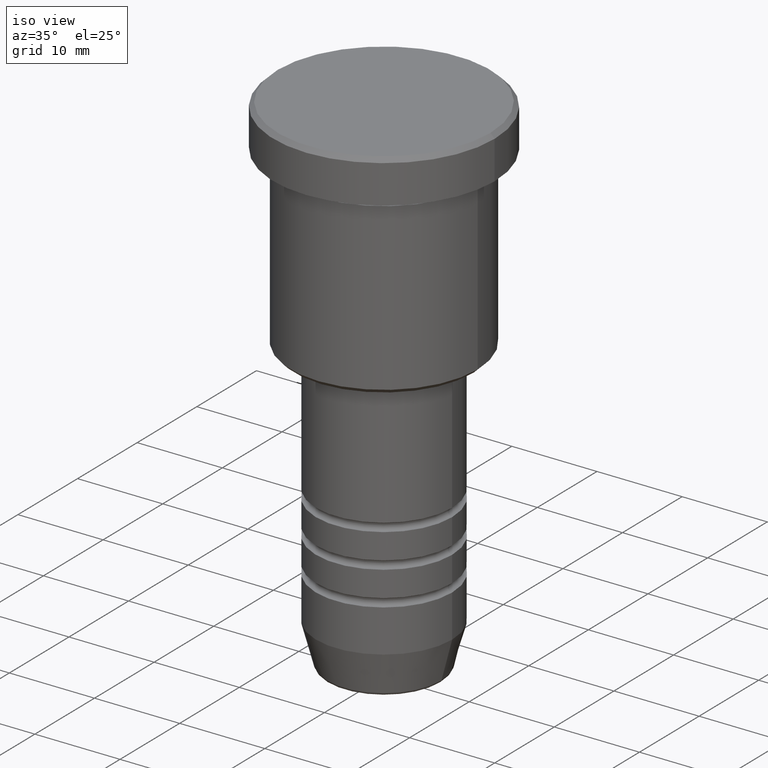
[diagram: clean part render]
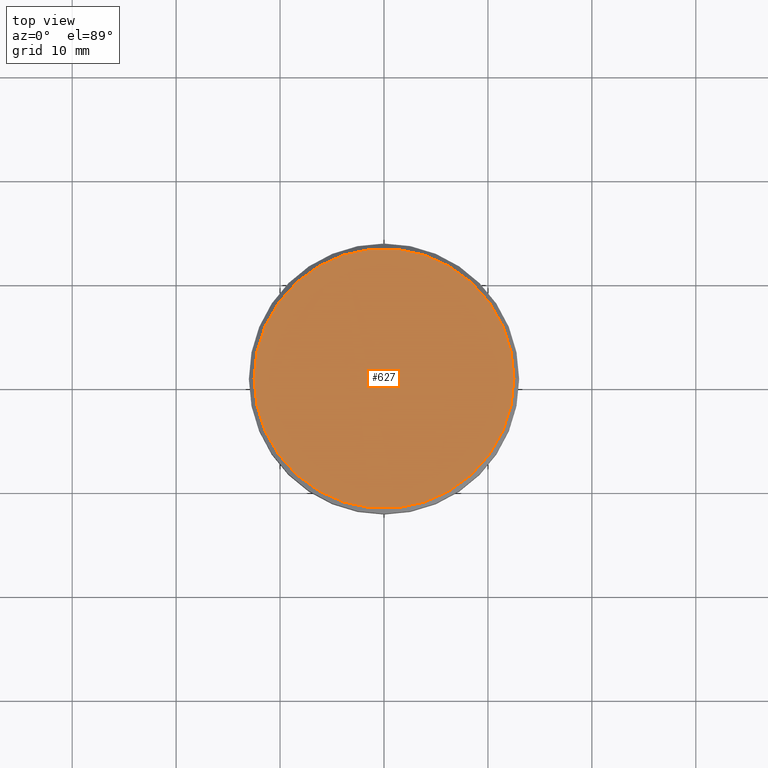
[diagram: tour spotlight — one face highlighted and labeled with its STEP entity id]
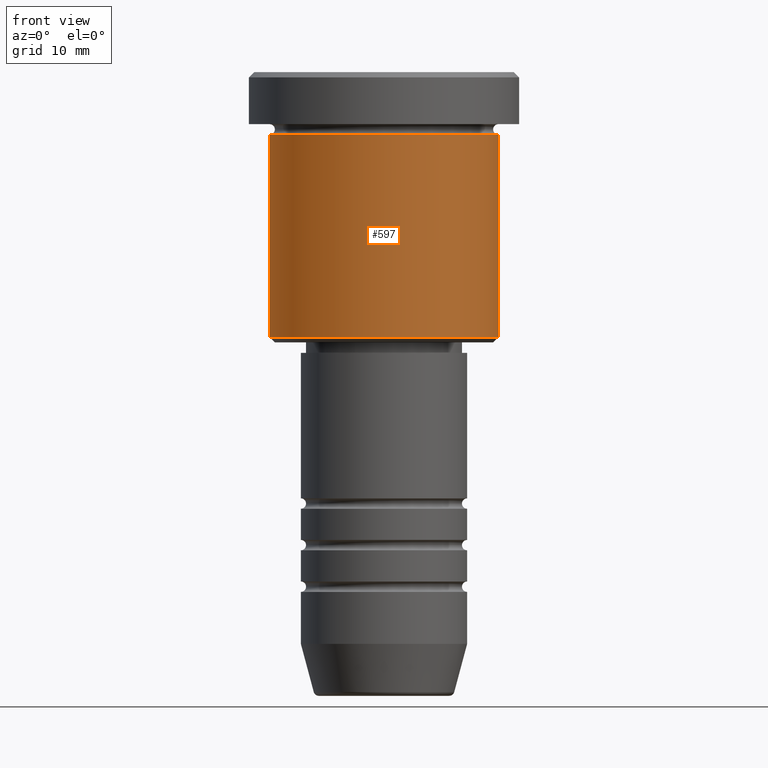
[diagram: tour spotlight — one face highlighted and labeled with its STEP entity id]
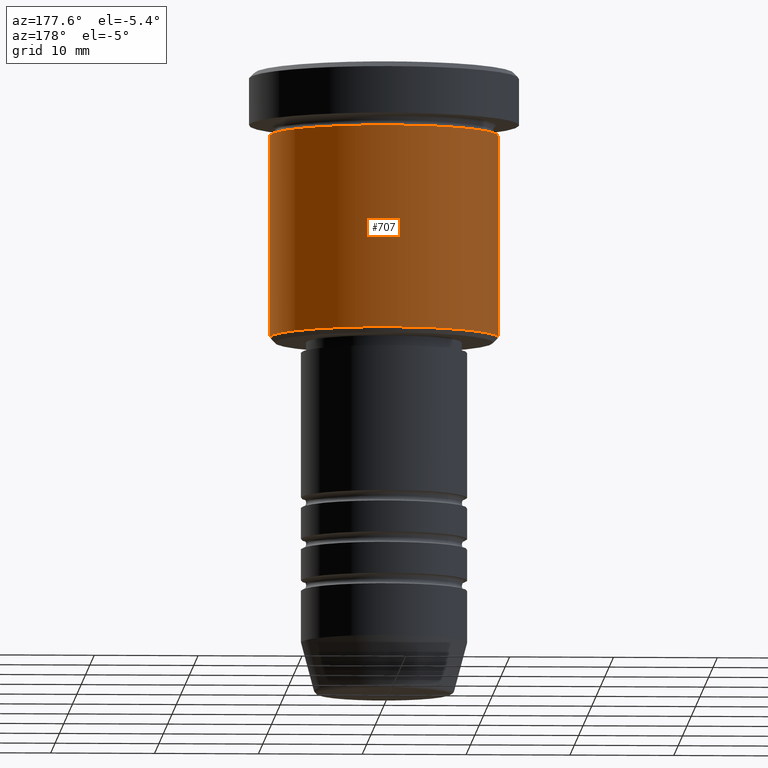
[diagram: tour spotlight — one face highlighted and labeled with its STEP entity id]
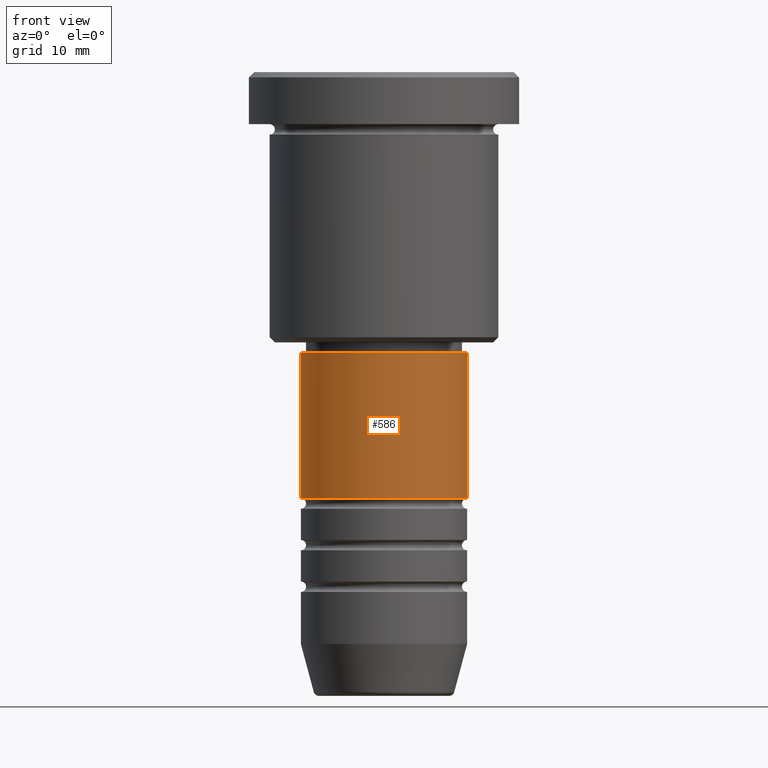
[diagram: tour spotlight — one face highlighted and labeled with its STEP entity id]
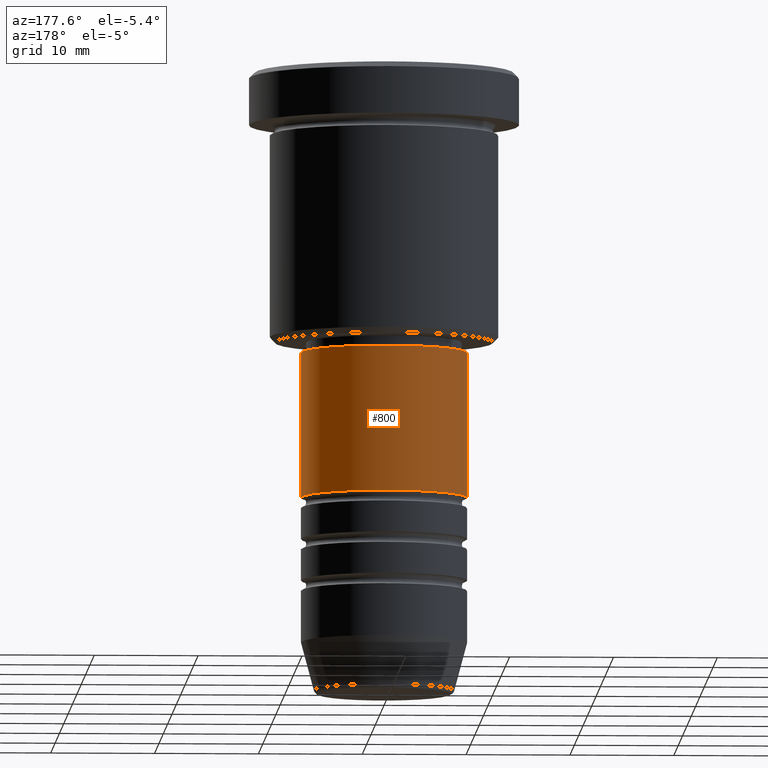
[diagram: tour spotlight — one face highlighted and labeled with its STEP entity id]
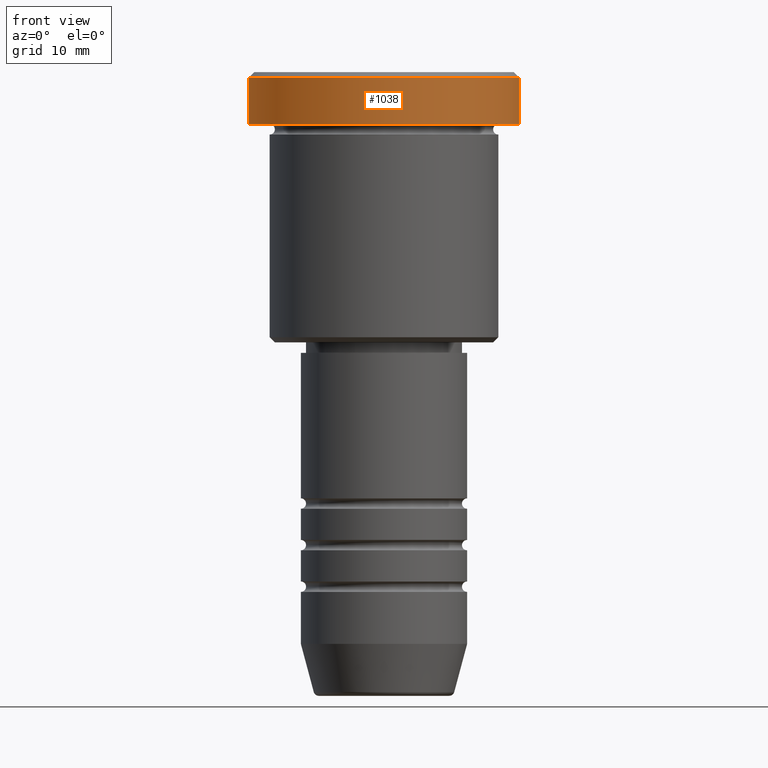
[diagram: tour spotlight — one face highlighted and labeled with its STEP entity id]
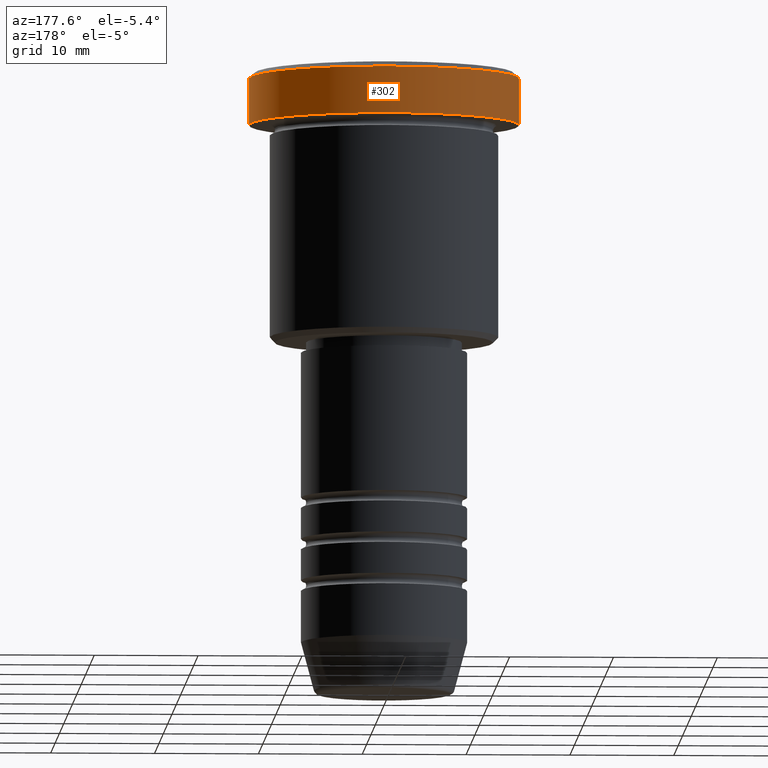
[diagram: tour spotlight — one face highlighted and labeled with its STEP entity id]
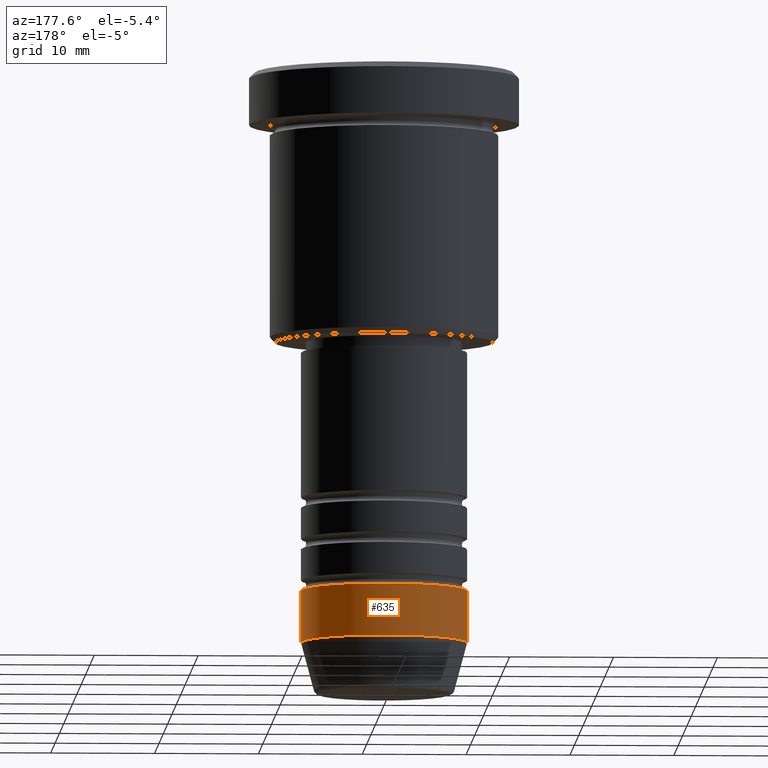
[diagram: tour spotlight — one face highlighted and labeled with its STEP entity id]
A machine part: a face-by-face anatomy tour. The part has 43 B-rep faces; the first image is the clean iso view, then the 8 largest visible faces are spotlighted one at a time (largest first), each with its STEP entity span.

Face 1 — top view, entity #627. In plain terms, the highlighted planar face has unit normal (0, -0, 1).
Definition (entity closure, byte-faithful):
#22 = DIRECTION ( 'NONE',  ( -0.000000000000000000, -0.000000000000000000, 1.000000000000000000 ) ) ;
#30 = CARTESIAN_POINT ( 'NONE',  ( 0.000000000000000000, 0.000000000000000000, 0.000000000000000000 ) ) ;
#57 = VERTEX_POINT ( 'NONE', #466 ) ;
#65 = CARTESIAN_POINT ( 'NONE',  ( -12.50000000000001776, 0.000000000000000000, 0.000000000000000000 ) ) ;
#132 = EDGE_CURVE ( 'NONE', #57, #149, #404, .T. ) ;
#149 = VERTEX_POINT ( 'NONE', #65 ) ;
#199 = ORIENTED_EDGE ( 'NONE', *, *, #132, .T. ) ;
#230 = AXIS2_PLACEMENT_3D ( 'NONE', #416, #782, #882 ) ;
#241 = CARTESIAN_POINT ( 'NONE',  ( 0.000000000000000000, 0.000000000000000000, 0.000000000000000000 ) ) ;
#317 = PLANE ( 'NONE',  #951 ) ;
#329 = AXIS2_PLACEMENT_3D ( 'NONE', #30, #22, #399 ) ;
#399 = DIRECTION ( 'NONE',  ( 1.000000000000000000, 0.000000000000000000, 0.000000000000000000 ) ) ;
#404 = CIRCLE ( 'NONE', #230, 12.50000000000001776 ) ;
#416 = CARTESIAN_POINT ( 'NONE',  ( 0.000000000000000000, 0.000000000000000000, 0.000000000000000000 ) ) ;
#466 = CARTESIAN_POINT ( 'NONE',  ( 12.50000000000001776, 1.561424668912876492E-15, 0.000000000000000000 ) ) ;
#493 = EDGE_LOOP ( 'NONE', ( #729, #199 ) ) ;
#594 = FACE_OUTER_BOUND ( 'NONE', #493, .T. ) ;
#627 = ADVANCED_FACE ( 'NONE', ( #594 ), #317, .T. ) ;
#729 = ORIENTED_EDGE ( 'NONE', *, *, #940, .T. ) ;
#782 = DIRECTION ( 'NONE',  ( -0.000000000000000000, -0.000000000000000000, 1.000000000000000000 ) ) ;
#882 = DIRECTION ( 'NONE',  ( 1.000000000000000000, 0.000000000000000000, 0.000000000000000000 ) ) ;
#940 = EDGE_CURVE ( 'NONE', #149, #57, #1049, .T. ) ;
#951 = AXIS2_PLACEMENT_3D ( 'NONE', #241, #1056, #1164 ) ;
#1049 = CIRCLE ( 'NONE', #329, 12.50000000000001776 ) ;
#1056 = DIRECTION ( 'NONE',  ( 0.000000000000000000, -0.000000000000000000, 1.000000000000000000 ) ) ;
#1164 = DIRECTION ( 'NONE',  ( 1.000000000000000000, 0.000000000000000000, 0.000000000000000000 ) ) ;

Face 2 — front view, entity #597. In plain terms, the highlighted cylindrical surface (partial cylindrical patch) has radius 11 mm, axis along (-0, -0, 1).
Definition (entity closure, byte-faithful):
#45 = EDGE_LOOP ( 'NONE', ( #179, #862, #1087, #417 ) ) ;
#81 = CARTESIAN_POINT ( 'NONE',  ( 0.000000000000000000, 0.000000000000000000, -5.999999999999999112 ) ) ;
#85 = CIRCLE ( 'NONE', #390, 11.00000000000000000 ) ;
#146 = CARTESIAN_POINT ( 'NONE',  ( 11.00000000000000000, 0.000000000000000000, -5.999999999999999112 ) ) ;
#179 = ORIENTED_EDGE ( 'NONE', *, *, #549, .F. ) ;
#191 = DIRECTION ( 'NONE',  ( 1.000000000000000000, 0.000000000000000000, 0.000000000000000000 ) ) ;
#216 = AXIS2_PLACEMENT_3D ( 'NONE', #978, #708, #611 ) ;
#236 = CIRCLE ( 'NONE', #273, 11.00000000000000000 ) ;
#269 = CARTESIAN_POINT ( 'NONE',  ( 11.00000000000000000, 0.000000000000000000, 0.000000000000000000 ) ) ;
#273 = AXIS2_PLACEMENT_3D ( 'NONE', #1151, #507, #427 ) ;
#291 = VECTOR ( 'NONE', #734, 1000.000000000000000 ) ;
#304 = CARTESIAN_POINT ( 'NONE',  ( -11.00000000000000000, 1.347111479062088405E-15, -5.999999999999999112 ) ) ;
#390 = AXIS2_PLACEMENT_3D ( 'NONE', #81, #441, #191 ) ;
#417 = ORIENTED_EDGE ( 'NONE', *, *, #834, .F. ) ;
#427 = DIRECTION ( 'NONE',  ( -1.000000000000000000, 0.000000000000000000, 0.000000000000000000 ) ) ;
#441 = DIRECTION ( 'NONE',  ( -0.000000000000000000, -0.000000000000000000, 1.000000000000000000 ) ) ;
#507 = DIRECTION ( 'NONE',  ( -0.000000000000000000, -0.000000000000000000, 1.000000000000000000 ) ) ;
#549 = EDGE_CURVE ( 'NONE', #964, #856, #1029, .T. ) ;
#566 = CARTESIAN_POINT ( 'NONE',  ( -11.00000000000000000, 1.347111479062088405E-15, 0.000000000000000000 ) ) ;
#597 = ADVANCED_FACE ( 'NONE', ( #607 ), #698, .T. ) ;
#604 = EDGE_CURVE ( 'NONE', #964, #724, #236, .T. ) ;
#607 = FACE_OUTER_BOUND ( 'NONE', #45, .T. ) ;
#611 = DIRECTION ( 'NONE',  ( 1.000000000000000000, 0.000000000000000000, 0.000000000000000000 ) ) ;
#637 = LINE ( 'NONE', #269, #291 ) ;
#692 = EDGE_CURVE ( 'NONE', #724, #993, #637, .T. ) ;
#698 = CYLINDRICAL_SURFACE ( 'NONE', #216, 11.00000000000000000 ) ;
#708 = DIRECTION ( 'NONE',  ( -0.000000000000000000, -0.000000000000000000, 1.000000000000000000 ) ) ;
#724 = VERTEX_POINT ( 'NONE', #913 ) ;
#734 = DIRECTION ( 'NONE',  ( -0.000000000000000000, -0.000000000000000000, 1.000000000000000000 ) ) ;
#830 = VECTOR ( 'NONE', #1036, 1000.000000000000000 ) ;
#834 = EDGE_CURVE ( 'NONE', #856, #993, #85, .T. ) ;
#836 = CARTESIAN_POINT ( 'NONE',  ( -11.00000000000000000, 1.347111479062088405E-15, -25.50000000000000355 ) ) ;
#856 = VERTEX_POINT ( 'NONE', #304 ) ;
#862 = ORIENTED_EDGE ( 'NONE', *, *, #604, .T. ) ;
#913 = CARTESIAN_POINT ( 'NONE',  ( 11.00000000000000000, 0.000000000000000000, -25.50000000000000355 ) ) ;
#964 = VERTEX_POINT ( 'NONE', #836 ) ;
#978 = CARTESIAN_POINT ( 'NONE',  ( 0.000000000000000000, 0.000000000000000000, 0.000000000000000000 ) ) ;
#993 = VERTEX_POINT ( 'NONE', #146 ) ;
#1029 = LINE ( 'NONE', #566, #830 ) ;
#1036 = DIRECTION ( 'NONE',  ( -0.000000000000000000, -0.000000000000000000, 1.000000000000000000 ) ) ;
#1087 = ORIENTED_EDGE ( 'NONE', *, *, #692, .T. ) ;
#1151 = CARTESIAN_POINT ( 'NONE',  ( 0.000000000000000000, 0.000000000000000000, -25.50000000000000355 ) ) ;

Face 3 — auxiliary view, entity #707. In plain terms, the highlighted cylindrical surface (partial cylindrical patch) has radius 11 mm, axis along (-0, -0, 1).
Definition (entity closure, byte-faithful):
#17 = ORIENTED_EDGE ( 'NONE', *, *, #861, .F. ) ;
#60 = EDGE_CURVE ( 'NONE', #724, #964, #849, .T. ) ;
#146 = CARTESIAN_POINT ( 'NONE',  ( 11.00000000000000000, 0.000000000000000000, -5.999999999999999112 ) ) ;
#161 = ORIENTED_EDGE ( 'NONE', *, *, #692, .F. ) ;
#184 = DIRECTION ( 'NONE',  ( -1.000000000000000000, 0.000000000000000000, 0.000000000000000000 ) ) ;
#200 = CARTESIAN_POINT ( 'NONE',  ( 0.000000000000000000, 0.000000000000000000, -5.999999999999999112 ) ) ;
#209 = CARTESIAN_POINT ( 'NONE',  ( 0.000000000000000000, 0.000000000000000000, -25.50000000000000355 ) ) ;
#264 = FACE_OUTER_BOUND ( 'NONE', #1043, .T. ) ;
#269 = CARTESIAN_POINT ( 'NONE',  ( 11.00000000000000000, 0.000000000000000000, 0.000000000000000000 ) ) ;
#275 = ORIENTED_EDGE ( 'NONE', *, *, #549, .T. ) ;
#291 = VECTOR ( 'NONE', #734, 1000.000000000000000 ) ;
#304 = CARTESIAN_POINT ( 'NONE',  ( -11.00000000000000000, 1.347111479062088405E-15, -5.999999999999999112 ) ) ;
#345 = CARTESIAN_POINT ( 'NONE',  ( 0.000000000000000000, 0.000000000000000000, 0.000000000000000000 ) ) ;
#450 = ORIENTED_EDGE ( 'NONE', *, *, #60, .T. ) ;
#549 = EDGE_CURVE ( 'NONE', #964, #856, #1029, .T. ) ;
#566 = CARTESIAN_POINT ( 'NONE',  ( -11.00000000000000000, 1.347111479062088405E-15, 0.000000000000000000 ) ) ;
#637 = LINE ( 'NONE', #269, #291 ) ;
#644 = CYLINDRICAL_SURFACE ( 'NONE', #756, 11.00000000000000000 ) ;
#661 = DIRECTION ( 'NONE',  ( -0.000000000000000000, -0.000000000000000000, 1.000000000000000000 ) ) ;
#692 = EDGE_CURVE ( 'NONE', #724, #993, #637, .T. ) ;
#707 = ADVANCED_FACE ( 'NONE', ( #264 ), #644, .T. ) ;
#724 = VERTEX_POINT ( 'NONE', #913 ) ;
#734 = DIRECTION ( 'NONE',  ( -0.000000000000000000, -0.000000000000000000, 1.000000000000000000 ) ) ;
#751 = DIRECTION ( 'NONE',  ( -0.000000000000000000, -0.000000000000000000, 1.000000000000000000 ) ) ;
#756 = AXIS2_PLACEMENT_3D ( 'NONE', #345, #803, #1010 ) ;
#803 = DIRECTION ( 'NONE',  ( -0.000000000000000000, -0.000000000000000000, 1.000000000000000000 ) ) ;
#830 = VECTOR ( 'NONE', #1036, 1000.000000000000000 ) ;
#832 = AXIS2_PLACEMENT_3D ( 'NONE', #200, #751, #942 ) ;
#836 = CARTESIAN_POINT ( 'NONE',  ( -11.00000000000000000, 1.347111479062088405E-15, -25.50000000000000355 ) ) ;
#849 = CIRCLE ( 'NONE', #1172, 11.00000000000000000 ) ;
#856 = VERTEX_POINT ( 'NONE', #304 ) ;
#861 = EDGE_CURVE ( 'NONE', #993, #856, #1065, .T. ) ;
#913 = CARTESIAN_POINT ( 'NONE',  ( 11.00000000000000000, 0.000000000000000000, -25.50000000000000355 ) ) ;
#942 = DIRECTION ( 'NONE',  ( 1.000000000000000000, 0.000000000000000000, 0.000000000000000000 ) ) ;
#964 = VERTEX_POINT ( 'NONE', #836 ) ;
#993 = VERTEX_POINT ( 'NONE', #146 ) ;
#1010 = DIRECTION ( 'NONE',  ( 1.000000000000000000, 0.000000000000000000, 0.000000000000000000 ) ) ;
#1029 = LINE ( 'NONE', #566, #830 ) ;
#1036 = DIRECTION ( 'NONE',  ( -0.000000000000000000, -0.000000000000000000, 1.000000000000000000 ) ) ;
#1043 = EDGE_LOOP ( 'NONE', ( #450, #275, #17, #161 ) ) ;
#1065 = CIRCLE ( 'NONE', #832, 11.00000000000000000 ) ;
#1172 = AXIS2_PLACEMENT_3D ( 'NONE', #209, #661, #184 ) ;

Face 4 — front view, entity #586. In plain terms, the highlighted cylindrical surface (partial cylindrical patch) has radius 8 mm, axis along (-0, -0, 1).
Definition (entity closure, byte-faithful):
#26 = CARTESIAN_POINT ( 'NONE',  ( -8.000000000000000000, 9.797174393178825657E-16, 0.000000000000000000 ) ) ;
#49 = DIRECTION ( 'NONE',  ( 1.000000000000000000, 0.000000000000000000, 0.000000000000000000 ) ) ;
#55 = EDGE_CURVE ( 'NONE', #941, #540, #471, .T. ) ;
#102 = CIRCLE ( 'NONE', #442, 8.000000000000000000 ) ;
#134 = DIRECTION ( 'NONE',  ( -0.000000000000000000, -0.000000000000000000, 1.000000000000000000 ) ) ;
#141 = CARTESIAN_POINT ( 'NONE',  ( 0.000000000000000000, 0.000000000000000000, 0.000000000000000000 ) ) ;
#153 = LINE ( 'NONE', #240, #790 ) ;
#170 = DIRECTION ( 'NONE',  ( -0.000000000000000000, -0.000000000000000000, 1.000000000000000000 ) ) ;
#201 = DIRECTION ( 'NONE',  ( -0.000000000000000000, -0.000000000000000000, 1.000000000000000000 ) ) ;
#221 = CARTESIAN_POINT ( 'NONE',  ( 0.000000000000000000, 0.000000000000000000, -40.99999999999999289 ) ) ;
#235 = DIRECTION ( 'NONE',  ( -0.000000000000000000, -0.000000000000000000, 1.000000000000000000 ) ) ;
#240 = CARTESIAN_POINT ( 'NONE',  ( 8.000000000000000000, 0.000000000000000000, 0.000000000000000000 ) ) ;
#246 = CYLINDRICAL_SURFACE ( 'NONE', #560, 8.000000000000000000 ) ;
#355 = EDGE_CURVE ( 'NONE', #540, #1148, #1046, .T. ) ;
#375 = VERTEX_POINT ( 'NONE', #931 ) ;
#438 = ORIENTED_EDGE ( 'NONE', *, *, #55, .F. ) ;
#442 = AXIS2_PLACEMENT_3D ( 'NONE', #221, #201, #585 ) ;
#461 = CARTESIAN_POINT ( 'NONE',  ( 0.000000000000000000, 0.000000000000000000, -27.00000000000001776 ) ) ;
#471 = LINE ( 'NONE', #26, #1024 ) ;
#502 = ORIENTED_EDGE ( 'NONE', *, *, #506, .T. ) ;
#506 = EDGE_CURVE ( 'NONE', #941, #375, #102, .T. ) ;
#540 = VERTEX_POINT ( 'NONE', #683 ) ;
#548 = DIRECTION ( 'NONE',  ( 1.000000000000000000, 0.000000000000000000, 0.000000000000000000 ) ) ;
#560 = AXIS2_PLACEMENT_3D ( 'NONE', #141, #235, #49 ) ;
#585 = DIRECTION ( 'NONE',  ( 1.000000000000000000, 0.000000000000000000, 0.000000000000000000 ) ) ;
#586 = ADVANCED_FACE ( 'NONE', ( #1145 ), #246, .T. ) ;
#681 = CARTESIAN_POINT ( 'NONE',  ( -8.000000000000000000, 9.797174393178825657E-16, -40.99999999999999289 ) ) ;
#683 = CARTESIAN_POINT ( 'NONE',  ( -8.000000000000000000, 9.797174393178825657E-16, -27.00000000000001776 ) ) ;
#730 = CARTESIAN_POINT ( 'NONE',  ( 8.000000000000000000, 0.000000000000000000, -27.00000000000001776 ) ) ;
#758 = EDGE_LOOP ( 'NONE', ( #438, #502, #1072, #1054 ) ) ;
#790 = VECTOR ( 'NONE', #134, 1000.000000000000000 ) ;
#872 = AXIS2_PLACEMENT_3D ( 'NONE', #461, #170, #548 ) ;
#931 = CARTESIAN_POINT ( 'NONE',  ( 8.000000000000000000, 0.000000000000000000, -40.99999999999999289 ) ) ;
#941 = VERTEX_POINT ( 'NONE', #681 ) ;
#1014 = EDGE_CURVE ( 'NONE', #375, #1148, #153, .T. ) ;
#1024 = VECTOR ( 'NONE', #1129, 1000.000000000000000 ) ;
#1046 = CIRCLE ( 'NONE', #872, 8.000000000000000000 ) ;
#1054 = ORIENTED_EDGE ( 'NONE', *, *, #355, .F. ) ;
#1072 = ORIENTED_EDGE ( 'NONE', *, *, #1014, .T. ) ;
#1129 = DIRECTION ( 'NONE',  ( -0.000000000000000000, -0.000000000000000000, 1.000000000000000000 ) ) ;
#1145 = FACE_OUTER_BOUND ( 'NONE', #758, .T. ) ;
#1148 = VERTEX_POINT ( 'NONE', #730 ) ;

Face 5 — auxiliary view, entity #800. In plain terms, the highlighted cylindrical surface (partial cylindrical patch) has radius 8 mm, axis along (-0, -0, 1).
Definition (entity closure, byte-faithful):
#4 = DIRECTION ( 'NONE',  ( 1.000000000000000000, 0.000000000000000000, 0.000000000000000000 ) ) ;
#24 = DIRECTION ( 'NONE',  ( -0.000000000000000000, -0.000000000000000000, 1.000000000000000000 ) ) ;
#26 = CARTESIAN_POINT ( 'NONE',  ( -8.000000000000000000, 9.797174393178825657E-16, 0.000000000000000000 ) ) ;
#55 = EDGE_CURVE ( 'NONE', #941, #540, #471, .T. ) ;
#129 = ORIENTED_EDGE ( 'NONE', *, *, #812, .T. ) ;
#134 = DIRECTION ( 'NONE',  ( -0.000000000000000000, -0.000000000000000000, 1.000000000000000000 ) ) ;
#152 = ORIENTED_EDGE ( 'NONE', *, *, #55, .T. ) ;
#153 = LINE ( 'NONE', #240, #790 ) ;
#177 = AXIS2_PLACEMENT_3D ( 'NONE', #358, #371, #1170 ) ;
#213 = DIRECTION ( 'NONE',  ( 1.000000000000000000, 0.000000000000000000, 0.000000000000000000 ) ) ;
#240 = CARTESIAN_POINT ( 'NONE',  ( 8.000000000000000000, 0.000000000000000000, 0.000000000000000000 ) ) ;
#358 = CARTESIAN_POINT ( 'NONE',  ( 0.000000000000000000, 0.000000000000000000, 0.000000000000000000 ) ) ;
#371 = DIRECTION ( 'NONE',  ( -0.000000000000000000, -0.000000000000000000, 1.000000000000000000 ) ) ;
#375 = VERTEX_POINT ( 'NONE', #931 ) ;
#407 = EDGE_CURVE ( 'NONE', #1148, #540, #890, .T. ) ;
#453 = DIRECTION ( 'NONE',  ( -0.000000000000000000, -0.000000000000000000, 1.000000000000000000 ) ) ;
#459 = FACE_OUTER_BOUND ( 'NONE', #651, .T. ) ;
#471 = LINE ( 'NONE', #26, #1024 ) ;
#474 = ORIENTED_EDGE ( 'NONE', *, *, #407, .F. ) ;
#540 = VERTEX_POINT ( 'NONE', #683 ) ;
#651 = EDGE_LOOP ( 'NONE', ( #129, #152, #474, #1139 ) ) ;
#677 = AXIS2_PLACEMENT_3D ( 'NONE', #1047, #24, #213 ) ;
#681 = CARTESIAN_POINT ( 'NONE',  ( -8.000000000000000000, 9.797174393178825657E-16, -40.99999999999999289 ) ) ;
#683 = CARTESIAN_POINT ( 'NONE',  ( -8.000000000000000000, 9.797174393178825657E-16, -27.00000000000001776 ) ) ;
#730 = CARTESIAN_POINT ( 'NONE',  ( 8.000000000000000000, 0.000000000000000000, -27.00000000000001776 ) ) ;
#790 = VECTOR ( 'NONE', #134, 1000.000000000000000 ) ;
#800 = ADVANCED_FACE ( 'NONE', ( #459 ), #1107, .T. ) ;
#812 = EDGE_CURVE ( 'NONE', #375, #941, #930, .T. ) ;
#890 = CIRCLE ( 'NONE', #677, 8.000000000000000000 ) ;
#930 = CIRCLE ( 'NONE', #1119, 8.000000000000000000 ) ;
#931 = CARTESIAN_POINT ( 'NONE',  ( 8.000000000000000000, 0.000000000000000000, -40.99999999999999289 ) ) ;
#941 = VERTEX_POINT ( 'NONE', #681 ) ;
#995 = CARTESIAN_POINT ( 'NONE',  ( 0.000000000000000000, 0.000000000000000000, -40.99999999999999289 ) ) ;
#1014 = EDGE_CURVE ( 'NONE', #375, #1148, #153, .T. ) ;
#1024 = VECTOR ( 'NONE', #1129, 1000.000000000000000 ) ;
#1047 = CARTESIAN_POINT ( 'NONE',  ( 0.000000000000000000, 0.000000000000000000, -27.00000000000001776 ) ) ;
#1107 = CYLINDRICAL_SURFACE ( 'NONE', #177, 8.000000000000000000 ) ;
#1119 = AXIS2_PLACEMENT_3D ( 'NONE', #995, #453, #4 ) ;
#1129 = DIRECTION ( 'NONE',  ( -0.000000000000000000, -0.000000000000000000, 1.000000000000000000 ) ) ;
#1139 = ORIENTED_EDGE ( 'NONE', *, *, #1014, .F. ) ;
#1148 = VERTEX_POINT ( 'NONE', #730 ) ;
#1170 = DIRECTION ( 'NONE',  ( 1.000000000000000000, 0.000000000000000000, 0.000000000000000000 ) ) ;

Face 6 — front view, entity #1038. In plain terms, the highlighted cylindrical surface (partial cylindrical patch) has radius 13 mm, axis along (-0, -0, 1).
Definition (entity closure, byte-faithful):
#53 = ORIENTED_EDGE ( 'NONE', *, *, #1021, .T. ) ;
#71 = DIRECTION ( 'NONE',  ( 1.000000000000000000, 0.000000000000000000, 0.000000000000000000 ) ) ;
#139 = CIRCLE ( 'NONE', #804, 13.00000000000000000 ) ;
#158 = EDGE_CURVE ( 'NONE', #1076, #956, #139, .T. ) ;
#159 = CIRCLE ( 'NONE', #988, 13.00000000000000000 ) ;
#206 = DIRECTION ( 'NONE',  ( -0.000000000000000000, -0.000000000000000000, 1.000000000000000000 ) ) ;
#212 = CARTESIAN_POINT ( 'NONE',  ( -13.00000000000000000, 1.592040838891559095E-15, -0.4999999999999865663 ) ) ;
#232 = CARTESIAN_POINT ( 'NONE',  ( 13.00000000000000000, 0.000000000000000000, -0.4999999999999865663 ) ) ;
#266 = EDGE_CURVE ( 'NONE', #633, #956, #1094, .T. ) ;
#315 = DIRECTION ( 'NONE',  ( -0.000000000000000000, -0.000000000000000000, 1.000000000000000000 ) ) ;
#328 = CARTESIAN_POINT ( 'NONE',  ( -13.00000000000000000, 1.592040838891559095E-15, -5.000000000000000000 ) ) ;
#351 = ORIENTED_EDGE ( 'NONE', *, *, #158, .T. ) ;
#419 = CARTESIAN_POINT ( 'NONE',  ( 13.00000000000000000, 0.000000000000000000, -5.000000000000000000 ) ) ;
#437 = DIRECTION ( 'NONE',  ( 0.000000000000000000, 0.000000000000000000, -1.000000000000000000 ) ) ;
#464 = VECTOR ( 'NONE', #315, 1000.000000000000000 ) ;
#475 = DIRECTION ( 'NONE',  ( 1.000000000000000000, 0.000000000000000000, 0.000000000000000000 ) ) ;
#505 = DIRECTION ( 'NONE',  ( 1.000000000000000000, 0.000000000000000000, 0.000000000000000000 ) ) ;
#574 = VERTEX_POINT ( 'NONE', #419 ) ;
#606 = DIRECTION ( 'NONE',  ( -0.000000000000000000, -0.000000000000000000, 1.000000000000000000 ) ) ;
#633 = VERTEX_POINT ( 'NONE', #328 ) ;
#638 = DIRECTION ( 'NONE',  ( -0.000000000000000000, -0.000000000000000000, 1.000000000000000000 ) ) ;
#639 = AXIS2_PLACEMENT_3D ( 'NONE', #965, #606, #505 ) ;
#688 = ORIENTED_EDGE ( 'NONE', *, *, #948, .T. ) ;
#704 = CARTESIAN_POINT ( 'NONE',  ( 0.000000000000000000, 0.000000000000000000, -0.4999999999999865663 ) ) ;
#804 = AXIS2_PLACEMENT_3D ( 'NONE', #704, #437, #71 ) ;
#828 = VECTOR ( 'NONE', #638, 1000.000000000000000 ) ;
#936 = CARTESIAN_POINT ( 'NONE',  ( 0.000000000000000000, 0.000000000000000000, -5.000000000000000000 ) ) ;
#948 = EDGE_CURVE ( 'NONE', #633, #574, #159, .T. ) ;
#956 = VERTEX_POINT ( 'NONE', #212 ) ;
#965 = CARTESIAN_POINT ( 'NONE',  ( 0.000000000000000000, 0.000000000000000000, 0.000000000000000000 ) ) ;
#972 = ORIENTED_EDGE ( 'NONE', *, *, #266, .F. ) ;
#988 = AXIS2_PLACEMENT_3D ( 'NONE', #936, #206, #475 ) ;
#1021 = EDGE_CURVE ( 'NONE', #574, #1076, #1060, .T. ) ;
#1038 = ADVANCED_FACE ( 'NONE', ( #1068 ), #1159, .T. ) ;
#1055 = CARTESIAN_POINT ( 'NONE',  ( 13.00000000000000000, 0.000000000000000000, 0.000000000000000000 ) ) ;
#1060 = LINE ( 'NONE', #1055, #464 ) ;
#1068 = FACE_OUTER_BOUND ( 'NONE', #1166, .T. ) ;
#1076 = VERTEX_POINT ( 'NONE', #232 ) ;
#1094 = LINE ( 'NONE', #1102, #828 ) ;
#1102 = CARTESIAN_POINT ( 'NONE',  ( -13.00000000000000000, 1.592040838891559095E-15, 0.000000000000000000 ) ) ;
#1159 = CYLINDRICAL_SURFACE ( 'NONE', #639, 13.00000000000000000 ) ;
#1166 = EDGE_LOOP ( 'NONE', ( #972, #688, #53, #351 ) ) ;

Face 7 — auxiliary view, entity #302. In plain terms, the highlighted cylindrical surface (partial cylindrical patch) has radius 13 mm, axis along (-0, -0, 1).
Definition (entity closure, byte-faithful):
#11 = CIRCLE ( 'NONE', #256, 13.00000000000000000 ) ;
#92 = CARTESIAN_POINT ( 'NONE',  ( 0.000000000000000000, 0.000000000000000000, 0.000000000000000000 ) ) ;
#137 = ORIENTED_EDGE ( 'NONE', *, *, #1021, .F. ) ;
#202 = ORIENTED_EDGE ( 'NONE', *, *, #992, .T. ) ;
#212 = CARTESIAN_POINT ( 'NONE',  ( -13.00000000000000000, 1.592040838891559095E-15, -0.4999999999999865663 ) ) ;
#232 = CARTESIAN_POINT ( 'NONE',  ( 13.00000000000000000, 0.000000000000000000, -0.4999999999999865663 ) ) ;
#256 = AXIS2_PLACEMENT_3D ( 'NONE', #1040, #486, #320 ) ;
#266 = EDGE_CURVE ( 'NONE', #633, #956, #1094, .T. ) ;
#302 = ADVANCED_FACE ( 'NONE', ( #727 ), #1183, .T. ) ;
#315 = DIRECTION ( 'NONE',  ( -0.000000000000000000, -0.000000000000000000, 1.000000000000000000 ) ) ;
#320 = DIRECTION ( 'NONE',  ( 1.000000000000000000, 0.000000000000000000, 0.000000000000000000 ) ) ;
#328 = CARTESIAN_POINT ( 'NONE',  ( -13.00000000000000000, 1.592040838891559095E-15, -5.000000000000000000 ) ) ;
#363 = DIRECTION ( 'NONE',  ( -0.000000000000000000, -0.000000000000000000, 1.000000000000000000 ) ) ;
#419 = CARTESIAN_POINT ( 'NONE',  ( 13.00000000000000000, 0.000000000000000000, -5.000000000000000000 ) ) ;
#462 = CIRCLE ( 'NONE', #617, 13.00000000000000000 ) ;
#464 = VECTOR ( 'NONE', #315, 1000.000000000000000 ) ;
#473 = EDGE_CURVE ( 'NONE', #956, #1076, #462, .T. ) ;
#481 = DIRECTION ( 'NONE',  ( 1.000000000000000000, 0.000000000000000000, 0.000000000000000000 ) ) ;
#486 = DIRECTION ( 'NONE',  ( -0.000000000000000000, -0.000000000000000000, 1.000000000000000000 ) ) ;
#563 = ORIENTED_EDGE ( 'NONE', *, *, #473, .T. ) ;
#574 = VERTEX_POINT ( 'NONE', #419 ) ;
#617 = AXIS2_PLACEMENT_3D ( 'NONE', #767, #1127, #481 ) ;
#633 = VERTEX_POINT ( 'NONE', #328 ) ;
#638 = DIRECTION ( 'NONE',  ( -0.000000000000000000, -0.000000000000000000, 1.000000000000000000 ) ) ;
#727 = FACE_OUTER_BOUND ( 'NONE', #1057, .T. ) ;
#767 = CARTESIAN_POINT ( 'NONE',  ( 0.000000000000000000, 0.000000000000000000, -0.4999999999999865663 ) ) ;
#817 = DIRECTION ( 'NONE',  ( 1.000000000000000000, 0.000000000000000000, 0.000000000000000000 ) ) ;
#828 = VECTOR ( 'NONE', #638, 1000.000000000000000 ) ;
#956 = VERTEX_POINT ( 'NONE', #212 ) ;
#968 = AXIS2_PLACEMENT_3D ( 'NONE', #92, #363, #817 ) ;
#992 = EDGE_CURVE ( 'NONE', #574, #633, #11, .T. ) ;
#1021 = EDGE_CURVE ( 'NONE', #574, #1076, #1060, .T. ) ;
#1040 = CARTESIAN_POINT ( 'NONE',  ( 0.000000000000000000, 0.000000000000000000, -5.000000000000000000 ) ) ;
#1055 = CARTESIAN_POINT ( 'NONE',  ( 13.00000000000000000, 0.000000000000000000, 0.000000000000000000 ) ) ;
#1057 = EDGE_LOOP ( 'NONE', ( #202, #1125, #563, #137 ) ) ;
#1060 = LINE ( 'NONE', #1055, #464 ) ;
#1076 = VERTEX_POINT ( 'NONE', #232 ) ;
#1094 = LINE ( 'NONE', #1102, #828 ) ;
#1102 = CARTESIAN_POINT ( 'NONE',  ( -13.00000000000000000, 1.592040838891559095E-15, 0.000000000000000000 ) ) ;
#1125 = ORIENTED_EDGE ( 'NONE', *, *, #266, .T. ) ;
#1127 = DIRECTION ( 'NONE',  ( 0.000000000000000000, 0.000000000000000000, -1.000000000000000000 ) ) ;
#1183 = CYLINDRICAL_SURFACE ( 'NONE', #968, 13.00000000000000000 ) ;

Face 8 — auxiliary view, entity #635. In plain terms, the highlighted cylindrical surface (partial cylindrical patch) has radius 8 mm, axis along (-0, -0, 1).
Definition (entity closure, byte-faithful):
#2 = VERTEX_POINT ( 'NONE', #397 ) ;
#117 = ORIENTED_EDGE ( 'NONE', *, *, #369, .F. ) ;
#142 = AXIS2_PLACEMENT_3D ( 'NONE', #433, #339, #793 ) ;
#187 = ORIENTED_EDGE ( 'NONE', *, *, #924, .T. ) ;
#205 = VERTEX_POINT ( 'NONE', #1161 ) ;
#227 = FACE_OUTER_BOUND ( 'NONE', #595, .T. ) ;
#308 = CIRCLE ( 'NONE', #405, 8.000000000000000000 ) ;
#311 = DIRECTION ( 'NONE',  ( -0.000000000000000000, -0.000000000000000000, 1.000000000000000000 ) ) ;
#339 = DIRECTION ( 'NONE',  ( -0.000000000000000000, -0.000000000000000000, 1.000000000000000000 ) ) ;
#369 = EDGE_CURVE ( 'NONE', #2, #205, #308, .T. ) ;
#394 = CARTESIAN_POINT ( 'NONE',  ( -8.000000000000000000, 9.797174393178825657E-16, -55.00000000000000000 ) ) ;
#397 = CARTESIAN_POINT ( 'NONE',  ( 8.000000000000000000, 0.000000000000000000, -50.00000000000000000 ) ) ;
#405 = AXIS2_PLACEMENT_3D ( 'NONE', #555, #718, #923 ) ;
#421 = EDGE_CURVE ( 'NONE', #879, #485, #656, .T. ) ;
#433 = CARTESIAN_POINT ( 'NONE',  ( 0.000000000000000000, 0.000000000000000000, 0.000000000000000000 ) ) ;
#476 = DIRECTION ( 'NONE',  ( -0.000000000000000000, -0.000000000000000000, 1.000000000000000000 ) ) ;
#485 = VERTEX_POINT ( 'NONE', #394 ) ;
#519 = CYLINDRICAL_SURFACE ( 'NONE', #142, 8.000000000000000000 ) ;
#555 = CARTESIAN_POINT ( 'NONE',  ( 0.000000000000000000, 0.000000000000000000, -50.00000000000000000 ) ) ;
#595 = EDGE_LOOP ( 'NONE', ( #845, #187, #117, #1128 ) ) ;
#618 = VECTOR ( 'NONE', #780, 1000.000000000000000 ) ;
#635 = ADVANCED_FACE ( 'NONE', ( #227 ), #519, .T. ) ;
#653 = CARTESIAN_POINT ( 'NONE',  ( 8.000000000000000000, 0.000000000000000000, -55.00000000000000000 ) ) ;
#656 = CIRCLE ( 'NONE', #1062, 8.000000000000000000 ) ;
#687 = EDGE_CURVE ( 'NONE', #879, #2, #777, .T. ) ;
#710 = VECTOR ( 'NONE', #311, 1000.000000000000000 ) ;
#718 = DIRECTION ( 'NONE',  ( -0.000000000000000000, -0.000000000000000000, 1.000000000000000000 ) ) ;
#748 = CARTESIAN_POINT ( 'NONE',  ( 0.000000000000000000, 0.000000000000000000, -55.00000000000000000 ) ) ;
#777 = LINE ( 'NONE', #1142, #618 ) ;
#780 = DIRECTION ( 'NONE',  ( -0.000000000000000000, -0.000000000000000000, 1.000000000000000000 ) ) ;
#793 = DIRECTION ( 'NONE',  ( 1.000000000000000000, 0.000000000000000000, 0.000000000000000000 ) ) ;
#845 = ORIENTED_EDGE ( 'NONE', *, *, #421, .T. ) ;
#879 = VERTEX_POINT ( 'NONE', #653 ) ;
#923 = DIRECTION ( 'NONE',  ( 1.000000000000000000, 0.000000000000000000, 0.000000000000000000 ) ) ;
#924 = EDGE_CURVE ( 'NONE', #485, #205, #1027, .T. ) ;
#950 = DIRECTION ( 'NONE',  ( 1.000000000000000000, 0.000000000000000000, 0.000000000000000000 ) ) ;
#1027 = LINE ( 'NONE', #1135, #710 ) ;
#1062 = AXIS2_PLACEMENT_3D ( 'NONE', #748, #476, #950 ) ;
#1128 = ORIENTED_EDGE ( 'NONE', *, *, #687, .F. ) ;
#1135 = CARTESIAN_POINT ( 'NONE',  ( -8.000000000000000000, 9.797174393178825657E-16, 0.000000000000000000 ) ) ;
#1142 = CARTESIAN_POINT ( 'NONE',  ( 8.000000000000000000, 0.000000000000000000, 0.000000000000000000 ) ) ;
#1161 = CARTESIAN_POINT ( 'NONE',  ( -8.000000000000000000, 9.797174393178825657E-16, -50.00000000000000000 ) ) ;